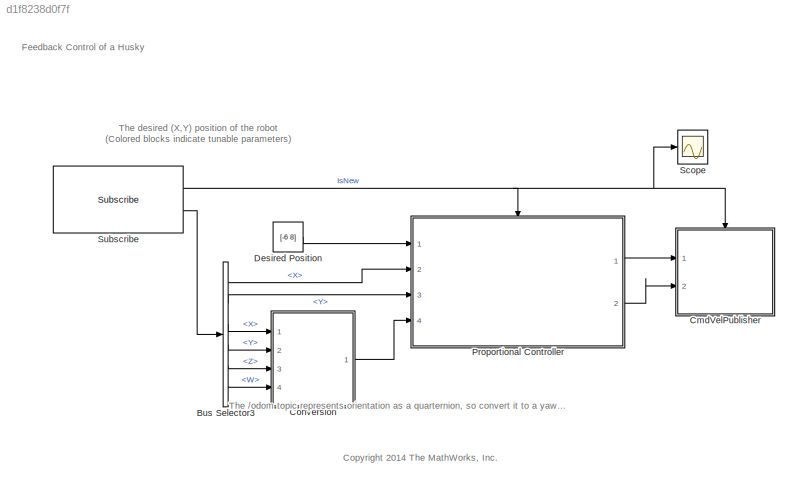
MODEL slx_d1f8238d0f7f
KIND model
CONFIG AbsTol = auto
CONFIG FixedStep = 0.05
CONFIG MaxStep = auto
CONFIG MinStep = auto
CONFIG RelTol = 1e-3
CONFIG SampleTimeConstraint = Unconstrained
CONFIG Solver = FixedStepAuto
CONFIG SolverMode = Auto
CONFIG SolverName = FixedStepAuto
CONFIG StartTime = 0.0
CONFIG StopTime = Inf
BLOCK [BusSelector] Bus Selector3
  OutputSignals = Pose.Pose.Position.X,Pose.Pose.Position.Y,Pose.Pose.Orientation.X,Pose.Pose.Orientation.Y,Pose.Pose.Orientation.Z,Pose.Pose.Orientation.W
  Ports = [1, 6]
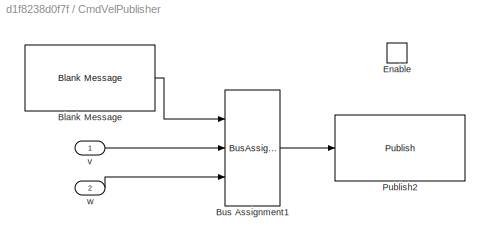
BLOCK [SubSystem] CmdVelPublisher
  Ports = [2, 0, 1]
  RequestExecContextInheritance = off
  Variant = off
BLOCK [Reference] CmdVelPublisher/Blank Message  REF=robotlib/Blank Message
  Ports = [0, 1]
  SourceBlock = robotlib/Blank Message
  SourceLibraryInfo = This block requires Robotics System Toolbox
  SourceType = ROS Blank Message
BLOCK [BusAssignment] CmdVelPublisher/Bus Assignment1
  AssignedSignals = Linear.X,Angular.Z
  DialogController = Simulink.DDGSource_BusAssignment
  Ports = [3, 1]
BLOCK [EnablePort] CmdVelPublisher/Enable
  Ports = []
BLOCK [Reference] CmdVelPublisher/Publish2  REF=robotlib/Publish
  AttributesFormatString = %<messageType>
  Ports = [1]
  SourceBlock = robotlib/Publish
  SourceLibraryInfo = This block requires Robotics System Toolbox
  SourceType = ROS Publish
BLOCK [Inport] CmdVelPublisher/v
  IconDisplay = Port number
BLOCK [Inport] CmdVelPublisher/w
  IconDisplay = Port number
  Port = 2
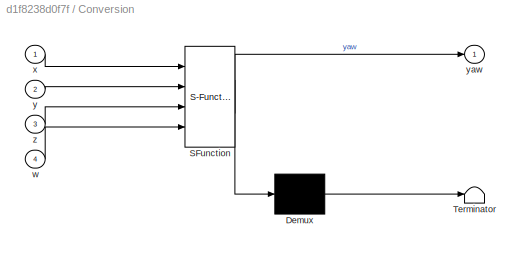
BLOCK [SubSystem] Conversion
  ErrorFcn = Stateflow.Translate.translate
  PermitHierarchicalResolution = ExplicitOnly
  Ports = [4, 1]
  RequestExecContextInheritance = off
  SFBlockType = MATLAB Function
  TreatAsAtomicUnit = on
  Variant = off
BLOCK [Demux] Conversion/ Demux 
  Outputs = 1
  Ports = [1, 1]
BLOCK [S-Function] Conversion/ SFunction 
  EnableBusSupport = on
  FunctionName = sf_sfun
  PortCounts = [4 2]
  Ports = [4, 2]
  SFunctionDeploymentMode = off
  Tag = Stateflow S-Function nre_huskycontrol 1
BLOCK [Terminator] Conversion/ Terminator 
BLOCK [Inport] Conversion/w
  IconDisplay = Port number
  Port = 4
BLOCK [Inport] Conversion/x
  IconDisplay = Port number
BLOCK [Inport] Conversion/y
  IconDisplay = Port number
  Port = 2
BLOCK [Outport] Conversion/yaw
  IconDisplay = Port number
BLOCK [Inport] Conversion/z
  IconDisplay = Port number
  Port = 3
BLOCK [Constant] Desired Position
  Value = [-6 8]
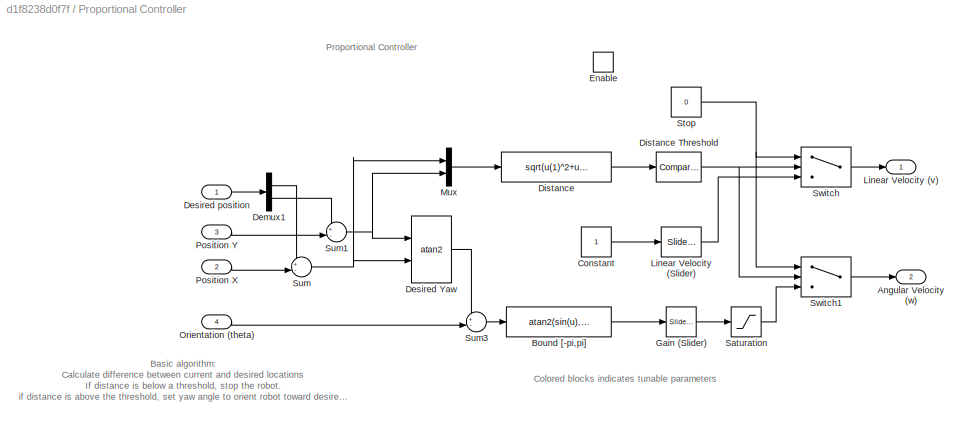
BLOCK [SubSystem] Proportional Controller
  Ports = [4, 2, 1]
  RequestExecContextInheritance = off
  Variant = off
BLOCK [Outport] Proportional Controller/Angular Velocity (w)
  IconDisplay = Port number
  Port = 2
BLOCK [Fcn] Proportional Controller/Bound [-pi,pi]
  Expr = atan2(sin(u),cos(u))
BLOCK [Constant] Proportional Controller/Constant
BLOCK [Demux] Proportional Controller/Demux1
  DisplayOption = bar
  Outputs = 2
  Ports = [1, 2]
BLOCK [Trigonometry] Proportional Controller/Desired Yaw
  Operator = atan2
  Ports = [2, 1]
BLOCK [Inport] Proportional Controller/Desired position
  IconDisplay = Port number
BLOCK [Fcn] Proportional Controller/Distance
  Expr = sqrt(u(1)^2+u(2)^2)
BLOCK [Reference] Proportional Controller/Distance Threshold  REF=simulink/Logic and Bit
Operations/Compare
To Constant
  Ports = [1, 1]
  SourceBlock = simulink/Logic and Bit\nOperations/Compare\nTo Constant
  SourceType = Compare To Constant
BLOCK [EnablePort] Proportional Controller/Enable
  Ports = []
BLOCK [Reference] Proportional Controller/Gain (Slider)  REF=simulink/Math
Operations/Slider
Gain
  Ports = [1, 1]
  SourceBlock = simulink/Math\nOperations/Slider\nGain
  SourceType = Slider Gain
BLOCK [Reference] Proportional Controller/Linear Velocity (Slider)  REF=simulink/Math
Operations/Slider
Gain
  Ports = [1, 1]
  SourceBlock = simulink/Math\nOperations/Slider\nGain
  SourceType = Slider Gain
BLOCK [Outport] Proportional Controller/Linear Velocity (v)
  IconDisplay = Port number
BLOCK [Mux] Proportional Controller/Mux
  DisplayOption = bar
  Inputs = 2
  Ports = [2, 1]
BLOCK [Inport] Proportional Controller/Orientation (theta)
  IconDisplay = Port number
  Port = 4
BLOCK [Inport] Proportional Controller/Position X
  IconDisplay = Port number
  Port = 2
BLOCK [Inport] Proportional Controller/Position Y
  IconDisplay = Port number
  Port = 3
BLOCK [Saturate] Proportional Controller/Saturation
  InputPortMap = u0
  Ports = [1, 1]
BLOCK [Constant] Proportional Controller/Stop
  Value = 0
BLOCK [Sum] Proportional Controller/Sum
  IconShape = round
  InputSameDT = off
  Inputs = +-|
  OutDataTypeStr = Inherit: Inherit via internal rule
  Ports = [2, 1]
  SaturateOnIntegerOverflow = off
BLOCK [Sum] Proportional Controller/Sum1
  IconShape = round
  InputSameDT = off
  Inputs = +-|
  OutDataTypeStr = Inherit: Inherit via internal rule
  Ports = [2, 1]
  SaturateOnIntegerOverflow = off
BLOCK [Sum] Proportional Controller/Sum3
  IconShape = round
  InputSameDT = off
  Inputs = +-|
  OutDataTypeStr = Inherit: Inherit via internal rule
  Ports = [2, 1]
  SaturateOnIntegerOverflow = off
BLOCK [Switch] Proportional Controller/Switch
  Criteria = u2 ~= 0
  InputSameDT = off
  SaturateOnIntegerOverflow = off
BLOCK [Switch] Proportional Controller/Switch1
  Criteria = u2 ~= 0
  InputSameDT = off
  SaturateOnIntegerOverflow = off
BLOCK [Scope] Scope
  Ports = [1]
  ScopeSpecificationString = Simulink.scopes.TimeScopeBlockCfg('CurrentConfiguration', extmgr.ConfigurationSet(extmgr.Configuration('Core','General UI',true,'FigureColor',[0.156862745098039 0.156862745098039 0.156862745098039]),extmgr.Configuration('Core','Source UI',true),extmgr.Configuration('Sources','WiredSimulink',true,'DataLoggingLimitDataPoints',true,'DataLoggingMaxPoints','1000','DataLoggingSaveFormat','Array','DataLo...<+2794ch>
BLOCK [Reference] Subscribe  REF=robotlib/Subscribe
  Ports = [0, 2]
  SourceBlock = robotlib/Subscribe
  SourceLibraryInfo = This block requires Robotics System Toolbox
  SourceType = ROS Subscribe
ANNOTATION (root): Feedback Control of a Husky
ANNOTATION (root): The /odom topic represents orientation as a quarternion, so convert it to a yaw angle
ANNOTATION (root): The desired (X,Y) position of the robot (Colored blocks indicate tunable parameters)
ANNOTATION (root): <copyright redacted>
ANNOTATION Proportional Controller: Proportional Controller
ANNOTATION Proportional Controller: Colored blocks indicates tunable parameters
ANNOTATION Proportional Controller: Basic algorithm: Calculate difference between current and desired locations If distance is below a threshold, stop the robot. if distance is above the threshold, set yaw angle to orient robot toward desired location, and drive towards it.
LINE Bus Selector3:1 -> Proportional Controller:2
LINE Bus Selector3:2 -> Proportional Controller:3
LINE Bus Selector3:3 -> Conversion:1
LINE Bus Selector3:4 -> Conversion:2
LINE Bus Selector3:5 -> Conversion:3
LINE Bus Selector3:6 -> Conversion:4
LINE CmdVelPublisher/Blank Message:1 -> CmdVelPublisher/Bus Assignment1:1
LINE CmdVelPublisher/Bus Assignment1:1 -> CmdVelPublisher/Publish2:1
LINE CmdVelPublisher/v:1 -> CmdVelPublisher/Bus Assignment1:2
LINE CmdVelPublisher/w:1 -> CmdVelPublisher/Bus Assignment1:3
LINE Conversion:1 -> Proportional Controller:4
LINE Desired Position:1 -> Proportional Controller:1
LINE Proportional Controller/Bound [-pi,pi]:1 -> Proportional Controller/Gain (Slider):1
LINE Proportional Controller/Constant:1 -> Proportional Controller/Linear Velocity (Slider):1
LINE Proportional Controller/Demux1:1 -> Proportional Controller/Sum:1
LINE Proportional Controller/Demux1:2 -> Proportional Controller/Sum1:1
LINE Proportional Controller/Desired Yaw:1 -> Proportional Controller/Sum3:1
LINE Proportional Controller/Desired position:1 -> Proportional Controller/Demux1:1
NET Proportional Controller/Distance Threshold:1 -> Proportional Controller/Switch1:2, Proportional Controller/Switch:2
LINE Proportional Controller/Distance:1 -> Proportional Controller/Distance Threshold:1
LINE Proportional Controller/Gain (Slider):1 -> Proportional Controller/Saturation:1
LINE Proportional Controller/Linear Velocity (Slider):1 -> Proportional Controller/Switch:3
LINE Proportional Controller/Mux:1 -> Proportional Controller/Distance:1
LINE Proportional Controller/Orientation (theta):1 -> Proportional Controller/Sum3:2
LINE Proportional Controller/Position X:1 -> Proportional Controller/Sum:2
LINE Proportional Controller/Position Y:1 -> Proportional Controller/Sum1:2
LINE Proportional Controller/Saturation:1 -> Proportional Controller/Switch1:3
NET Proportional Controller/Stop:1 -> Proportional Controller/Switch1:1, Proportional Controller/Switch:1
NET Proportional Controller/Sum1:1 -> Proportional Controller/Desired Yaw:1, Proportional Controller/Mux:2
LINE Proportional Controller/Sum3:1 -> Proportional Controller/Bound [-pi,pi]:1
NET Proportional Controller/Sum:1 -> Proportional Controller/Desired Yaw:2, Proportional Controller/Mux:1
LINE Proportional Controller/Switch1:1 -> Proportional Controller/Angular Velocity (w):1
LINE Proportional Controller/Switch:1 -> Proportional Controller/Linear Velocity (v):1
LINE Proportional Controller:1 -> CmdVelPublisher:1
LINE Proportional Controller:2 -> CmdVelPublisher:2
NET Subscribe:1 -> CmdVelPublisher:enable, Proportional Controller:enable, Scope:1
LINE Subscribe:2 -> Bus Selector3:1
note: NET lines group one-source signal fan-out (src -> all destinations, sorted); 1:1 wires keep LINE
CHART Conversion states=1 transitions=1
  STATE_LABEL 'eML_blk_kernel()'
  STATE_LABEL 'SCRIPT:\nfunction yaw  = quat2eul(x,y,z,w)\n%#codegen\n\n% Convert the quaternion to a yaw angle (zyx euler angle)\neul = quat2eul([w,x,y,z]);\nyaw = eul(1);\n\nend\n'
